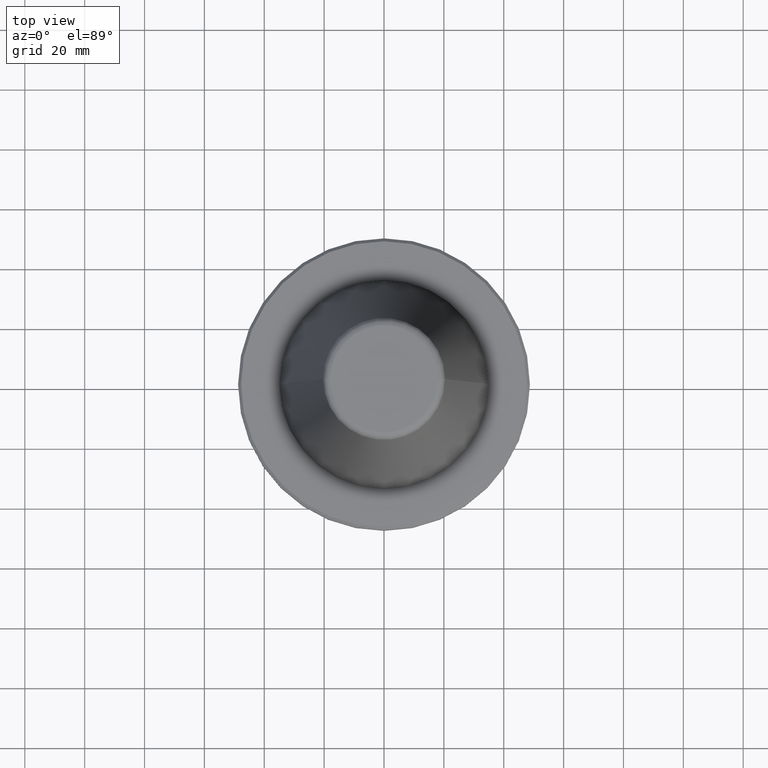
[diagram: clean part render]
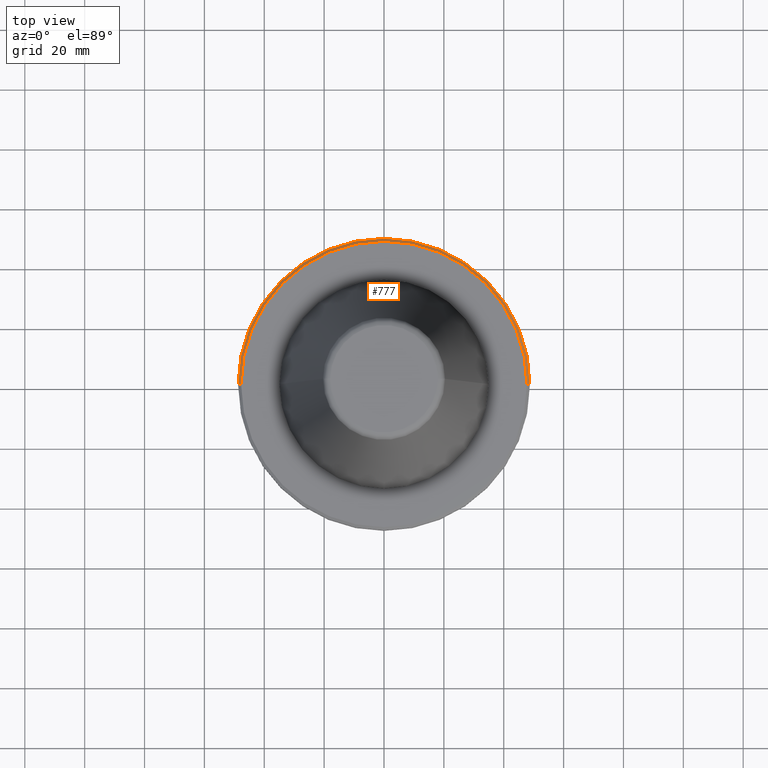
[diagram: same view with one face highlighted and labeled with its STEP entity id]
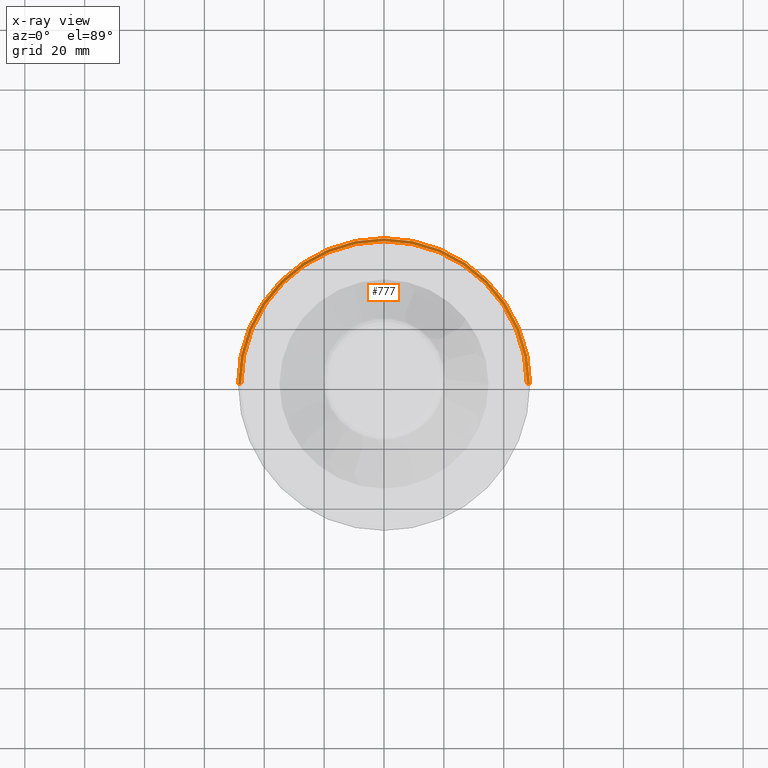
[diagram: x-ray of the same camera — body ghosted, the highlighted face saturated]
A machine part, top view. The second image highlights one B-rep face of the part: STEP entity #777.
The next image is the same camera in x-ray: the body ghosted, the highlighted face saturated — about 0% of this face is hidden behind the body in this view.
In plain terms, the highlighted conical surface has half-angle 45 deg.
Its self-contained STEP definition (entity closure, byte-faithful):
#8 = EDGE_LOOP ( 'NONE', ( #395, #701, #487, #201 ) ) ;
#16 = DIRECTION ( 'NONE',  ( -0.0000000000000000000, -0.0000000000000000000, 1.000000000000000000 ) ) ;
#36 = EDGE_CURVE ( 'NONE', #567, #210, #138, .T. ) ;
#75 = CARTESIAN_POINT ( 'NONE',  ( 0.0000000000000000000, 0.0000000000000000000, -4.199999999999870500 ) ) ;
#138 = CIRCLE ( 'NONE', #398, 48.74999999999995700 ) ;
#161 = CONICAL_SURFACE ( 'NONE', #810, 48.74999999999995700, 0.7853981633974482800 ) ;
#201 = ORIENTED_EDGE ( 'NONE', *, *, #707, .F. ) ;
#207 = FACE_OUTER_BOUND ( 'NONE', #8, .T. ) ;
#210 = VERTEX_POINT ( 'NONE', #940 ) ;
#242 = AXIS2_PLACEMENT_3D ( 'NONE', #343, #16, #255 ) ;
#255 = DIRECTION ( 'NONE',  ( 1.000000000000000000, 0.0000000000000000000, 0.0000000000000000000 ) ) ;
#283 = CARTESIAN_POINT ( 'NONE',  ( 47.74999999999995700, 5.908920805885974100E-015, -3.199999999999869600 ) ) ;
#294 = CARTESIAN_POINT ( 'NONE',  ( 48.74999999999995700, 5.970153145843342400E-015, -4.199999999999870500 ) ) ;
#343 = CARTESIAN_POINT ( 'NONE',  ( 0.0000000000000000000, 0.0000000000000000000, -3.199999999999869600 ) ) ;
#395 = ORIENTED_EDGE ( 'NONE', *, *, #402, .F. ) ;
#398 = AXIS2_PLACEMENT_3D ( 'NONE', #75, #850, #772 ) ;
#402 = EDGE_CURVE ( 'NONE', #827, #597, #735, .T. ) ;
#416 = DIRECTION ( 'NONE',  ( 0.7071067811865474600, 8.659560562354931600E-017, -0.7071067811865475700 ) ) ;
#469 = CARTESIAN_POINT ( 'NONE',  ( -47.74999999999995700, 0.0000000000000000000, -3.199999999999869600 ) ) ;
#487 = ORIENTED_EDGE ( 'NONE', *, *, #36, .T. ) ;
#489 = CARTESIAN_POINT ( 'NONE',  ( -48.74999999999995700, 0.0000000000000000000, -4.199999999999870500 ) ) ;
#526 = EDGE_CURVE ( 'NONE', #827, #567, #981, .T. ) ;
#567 = VERTEX_POINT ( 'NONE', #616 ) ;
#577 = VECTOR ( 'NONE', #416, 1000.000000000000000 ) ;
#597 = VERTEX_POINT ( 'NONE', #469 ) ;
#616 = CARTESIAN_POINT ( 'NONE',  ( 48.74999999999995700, 0.0000000000000000000, -4.199999999999870500 ) ) ;
#637 = VECTOR ( 'NONE', #723, 1000.000000000000000 ) ;
#655 = LINE ( 'NONE', #489, #637 ) ;
#701 = ORIENTED_EDGE ( 'NONE', *, *, #526, .T. ) ;
#707 = EDGE_CURVE ( 'NONE', #597, #210, #655, .T. ) ;
#723 = DIRECTION ( 'NONE',  ( -0.7071067811865474600, 0.0000000000000000000, -0.7071067811865475700 ) ) ;
#735 = CIRCLE ( 'NONE', #242, 47.74999999999995700 ) ;
#772 = DIRECTION ( 'NONE',  ( 1.000000000000000000, 0.0000000000000000000, 0.0000000000000000000 ) ) ;
#777 = ADVANCED_FACE ( 'NONE', ( #207 ), #161, .T. ) ;
#810 = AXIS2_PLACEMENT_3D ( 'NONE', #960, #922, #831 ) ;
#827 = VERTEX_POINT ( 'NONE', #283 ) ;
#831 = DIRECTION ( 'NONE',  ( -1.000000000000000000, 0.0000000000000000000, 0.0000000000000000000 ) ) ;
#850 = DIRECTION ( 'NONE',  ( -0.0000000000000000000, -0.0000000000000000000, 1.000000000000000000 ) ) ;
#922 = DIRECTION ( 'NONE',  ( 0.0000000000000000000, 0.0000000000000000000, -1.000000000000000000 ) ) ;
#940 = CARTESIAN_POINT ( 'NONE',  ( -48.74999999999995700, 5.970153145843342400E-015, -4.199999999999870500 ) ) ;
#960 = CARTESIAN_POINT ( 'NONE',  ( 0.0000000000000000000, 0.0000000000000000000, -4.199999999999870500 ) ) ;
#981 = LINE ( 'NONE', #294, #577 ) ;